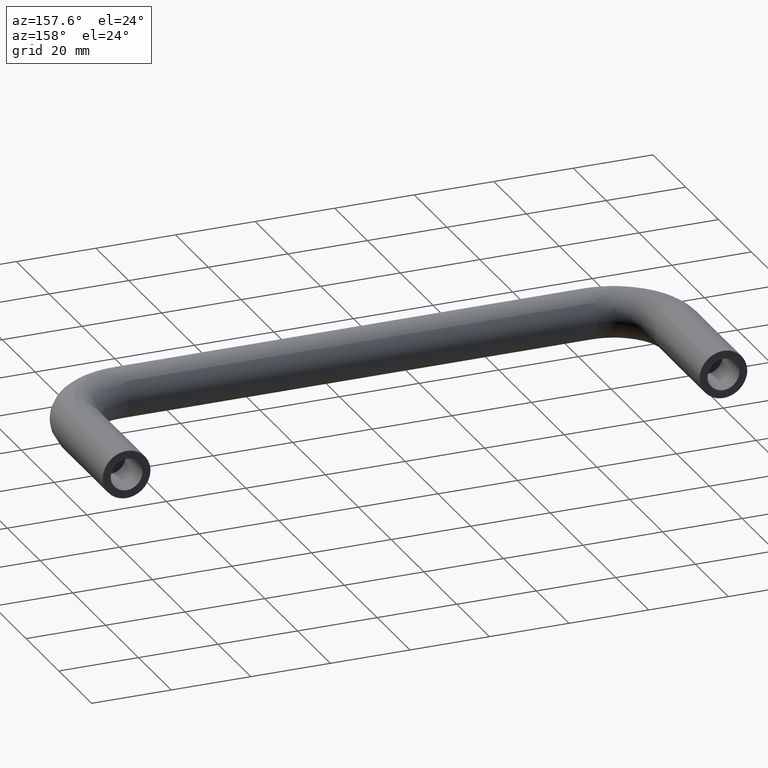
[diagram: clean part render]
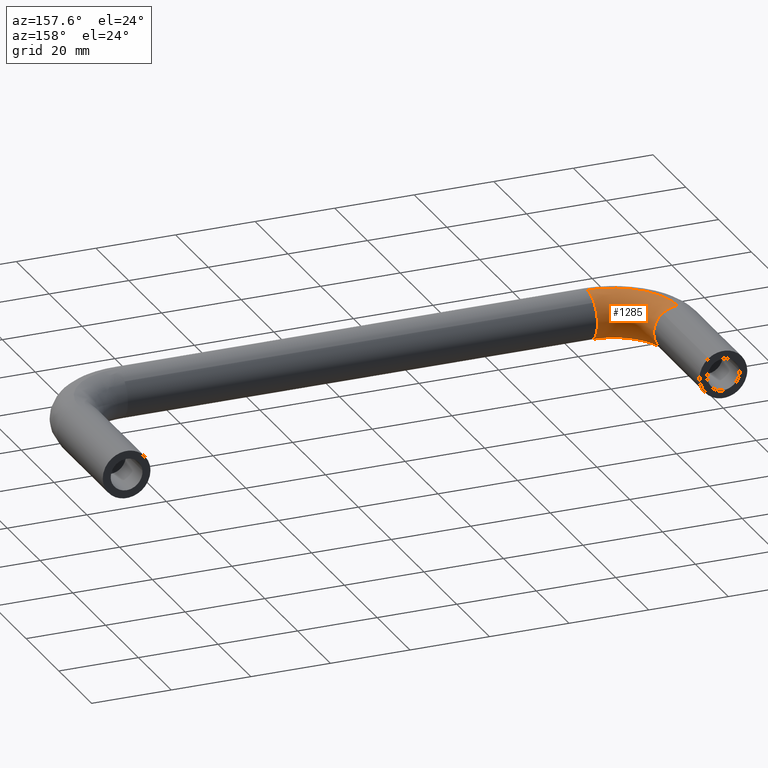
[diagram: same view with one face highlighted and labeled with its STEP entity id]
A machine part, auxiliary view. The second image highlights one B-rep face of the part: STEP entity #1285.
In plain terms, the highlighted face is a freeform B-spline surface patch.
Its self-contained STEP definition (entity closure, byte-faithful):
#668=CARTESIAN_POINT('',(15.999999999141631,-43.581600489424112,-5.985394042964074));
#669=VERTEX_POINT('',#668);
#685=CARTESIAN_POINT('',(16.0,-38.0,0.0));
#686=VERTEX_POINT('',#685);
#687=CARTESIAN_POINT('',(16.0,-38.0,0.0));
#688=CARTESIAN_POINT('',(16.0,-38.0,-5.595221081494556));
#689=CARTESIAN_POINT('',(15.999999999141634,-43.581600489424105,-5.985394042964075));
#697=(BOUNDED_CURVE()B_SPLINE_CURVE(2,(#687,#688,#689),.UNSPECIFIED.,.F.,.U.)B_SPLINE_CURVE_WITH_KNOTS((3,3),(0.0,0.237833686470585),.UNSPECIFIED.)CURVE()GEOMETRIC_REPRESENTATION_ITEM()RATIONAL_B_SPLINE_CURVE((1.0,0.721360504109444,0.972879876250539))REPRESENTATION_ITEM(''));
#698=EDGE_CURVE('',#686,#669,#697,.T.);
#700=CARTESIAN_POINT('',(16.0,-40.024282794942479,4.493737053432543));
#701=VERTEX_POINT('',#700);
#702=CARTESIAN_POINT('',(16.000000000000004,-40.024282794942479,4.493737053432543));
#703=CARTESIAN_POINT('',(16.0,-38.0,2.702805398987211));
#704=CARTESIAN_POINT('',(16.0,-38.0,0.0));
#712=(BOUNDED_CURVE()B_SPLINE_CURVE(2,(#702,#703,#704),.UNSPECIFIED.,.F.,.U.)B_SPLINE_CURVE_WITH_KNOTS((3,3),(0.865779784402009,1.0),.UNSPECIFIED.)CURVE()GEOMETRIC_REPRESENTATION_ITEM()RATIONAL_B_SPLINE_CURVE((0.854350176140473,0.842751236094676,1.0))REPRESENTATION_ITEM(''));
#713=EDGE_CURVE('',#701,#686,#712,.T.);
#817=CARTESIAN_POINT('',(15.999999999350271,-44.075396242914579,5.999526265177472));
#818=VERTEX_POINT('',#817);
#819=CARTESIAN_POINT('',(15.999999999350266,-44.075396242914579,5.999526265177472));
#820=CARTESIAN_POINT('',(15.999999999999996,-44.037699611566239,6.000000000000001));
#821=CARTESIAN_POINT('',(16.0,-44.0,6.0));
#822=CARTESIAN_POINT('',(15.999999999999996,-41.726805702402700,5.999999999999999));
#823=CARTESIAN_POINT('',(16.000000000000004,-40.024282794942479,4.493737053432543));
#831=(BOUNDED_CURVE()B_SPLINE_CURVE(2,(#819,#820,#821,#822,#823),.UNSPECIFIED.,.F.,.U.)B_SPLINE_CURVE_WITH_KNOTS((3,2,3),(0.747784295709823,0.750000000000000,0.865779784402009),.UNSPECIFIED.)CURVE()GEOMETRIC_REPRESENTATION_ITEM()RATIONAL_B_SPLINE_CURVE((0.994854295156289,0.997404140954045,1.0,0.864355545091872,0.854350176140473))REPRESENTATION_ITEM(''));
#832=EDGE_CURVE('',#818,#701,#831,.T.);
#884=CARTESIAN_POINT('',(-0.075396244198473,-28.000000000965699,5.999526265161338));
#885=VERTEX_POINT('',#884);
#886=CARTESIAN_POINT('',(3.735087819826505,-28.0,4.695648941113859));
#887=VERTEX_POINT('',#886);
#888=CARTESIAN_POINT('',(-0.075396244198473,-28.000000000965699,5.999526265161338));
#889=CARTESIAN_POINT('',(-0.037699612850280,-28.000000000000007,6.0));
#890=CARTESIAN_POINT('',(3.428898E-015,-28.0,6.0));
#891=CARTESIAN_POINT('',(2.095293800530349,-27.999999999999993,6.0));
#892=CARTESIAN_POINT('',(3.735087819826505,-28.0,4.695648941113860));
#900=(BOUNDED_CURVE()B_SPLINE_CURVE(2,(#888,#889,#890,#891,#892),.UNSPECIFIED.,.F.,.U.)B_SPLINE_CURVE_WITH_KNOTS((3,2,3),(0.747784295634552,0.750000000000000,0.857863877391495),.UNSPECIFIED.)CURVE()GEOMETRIC_REPRESENTATION_ITEM()RATIONAL_B_SPLINE_CURVE((0.994854294983044,0.997404140865859,1.0,0.873629607028422,0.856305618644054))REPRESENTATION_ITEM(''));
#901=EDGE_CURVE('',#885,#887,#900,.T.);
#998=CARTESIAN_POINT('',(6.000000000000004,-28.0,0.0));
#999=VERTEX_POINT('',#998);
#1000=CARTESIAN_POINT('',(3.735087819826505,-27.999999999999996,4.695648941113859));
#1001=CARTESIAN_POINT('',(6.000000000000004,-27.999999999999989,2.894056444904187));
#1002=CARTESIAN_POINT('',(6.000000000000004,-28.0,0.0));
#1010=(BOUNDED_CURVE()B_SPLINE_CURVE(2,(#1000,#1001,#1002),.UNSPECIFIED.,.F.,.U.)B_SPLINE_CURVE_WITH_KNOTS((3,3),(0.857863877391496,1.0),.UNSPECIFIED.)CURVE()GEOMETRIC_REPRESENTATION_ITEM()RATIONAL_B_SPLINE_CURVE((0.856305618644054,0.833477174158127,1.0))REPRESENTATION_ITEM(''));
#1011=EDGE_CURVE('',#887,#999,#1010,.T.);
#1013=CARTESIAN_POINT('',(0.418399511784851,-28.000000001480579,-5.985394042879566));
#1014=VERTEX_POINT('',#1013);
#1015=CARTESIAN_POINT('',(6.000000000000004,-28.0,0.0));
#1016=CARTESIAN_POINT('',(6.000000000000004,-27.999999999999996,-5.595221079228746));
#1017=CARTESIAN_POINT('',(0.418399511784851,-28.000000001480586,-5.985394042879566));
#1025=(BOUNDED_CURVE()B_SPLINE_CURVE(2,(#1015,#1016,#1017),.UNSPECIFIED.,.F.,.U.)B_SPLINE_CURVE_WITH_KNOTS((3,3),(0.0,0.237833686401109),.UNSPECIFIED.)CURVE()GEOMETRIC_REPRESENTATION_ITEM()RATIONAL_B_SPLINE_CURVE((1.0,0.721360504190839,0.972879876103592))REPRESENTATION_ITEM(''));
#1026=EDGE_CURVE('',#999,#1014,#1025,.T.);
#1220=CARTESIAN_POINT('',(-0.075396244198473,-28.000000000965709,5.999526265161338));
#1221=CARTESIAN_POINT('',(-0.075396237368702,-44.075396238000657,5.999526265222896));
#1222=CARTESIAN_POINT('',(15.999999999350264,-44.075396242914572,5.999526265177472));
#1230=(BOUNDED_CURVE()B_SPLINE_CURVE(2,(#1220,#1221,#1222),.UNSPECIFIED.,.F.,.U.)B_SPLINE_CURVE_WITH_KNOTS((3,3),(-1.744561813189079,-0.255438186769527),.UNSPECIFIED.)CURVE()GEOMETRIC_REPRESENTATION_ITEM()RATIONAL_B_SPLINE_CURVE((0.894678509997890,0.632633241470108,0.894678510012458))REPRESENTATION_ITEM(''));
#1231=EDGE_CURVE('',#885,#818,#1230,.T.);
#1236=CARTESIAN_POINT('',(0.418399511784851,-28.000000001480586,-5.985394042879566));
#1237=CARTESIAN_POINT('',(0.418399512413818,-43.581600488830617,-5.985394043042593));
#1238=CARTESIAN_POINT('',(15.999999999141638,-43.581600489424105,-5.985394042964074));
#1246=(BOUNDED_CURVE()B_SPLINE_CURVE(2,(#1236,#1237,#1238),.UNSPECIFIED.,.F.,.U.)B_SPLINE_CURVE_WITH_KNOTS((3,3),(-1.744561813115481,-0.255438186800423),.UNSPECIFIED.)CURVE()GEOMETRIC_REPRESENTATION_ITEM()RATIONAL_B_SPLINE_CURVE((0.874553433344358,0.618402663330830,0.874553433373290))REPRESENTATION_ITEM(''));
#1247=EDGE_CURVE('',#1014,#669,#1246,.T.);
#1252=CARTESIAN_POINT('',(-0.036483567885711,-26.882163237571998,5.999526265222896));
#1253=CARTESIAN_POINT('',(-1.321836769248059,-45.321837244897431,5.999526265222896));
#1254=CARTESIAN_POINT('',(17.117837202782201,-44.036483537190442,5.999526265222895));
#1255=CARTESIAN_POINT('',(5.948520032344958,-27.299353017318939,6.074922504523007));
#1256=CARTESIAN_POINT('',(5.142875708876957,-38.857124589254489,6.074922504523005));
#1257=CARTESIAN_POINT('',(16.700647258689905,-38.051479948415611,6.074922504523006));
#1258=CARTESIAN_POINT('',(6.023733764847594,-27.304595854682560,0.075396239300112));
#1259=CARTESIAN_POINT('',(5.224117958257964,-38.775882337642635,0.075396239300112));
#1260=CARTESIAN_POINT('',(16.695404419260946,-37.976266216056942,0.075396239300112));
#1261=CARTESIAN_POINT('',(6.094762111864237,-27.309546946181744,-5.590277027038187));
#1262=CARTESIAN_POINT('',(5.300839355926196,-38.699160937867653,-5.590277027038189));
#1263=CARTESIAN_POINT('',(16.690453325811365,-37.905237869176247,-5.590277027038187));
#1264=CARTESIAN_POINT('',(0.456116881452277,-26.916500371964812,-5.985394043042593));
#1265=CARTESIAN_POINT('',(-0.789753501755532,-44.789753962794158,-5.985394043042592));
#1266=CARTESIAN_POINT('',(17.083500054862824,-43.543883088795340,-5.985394043042594));
#1274=(BOUNDED_SURFACE()B_SPLINE_SURFACE(2,2,((#1252,#1255,#1258,#1261,#1264),(#1253,#1256,#1259,#1262,#1265),(#1254,#1257,#1260,#1263,#1266)),.UNSPECIFIED.,.F.,.F.,.U.)B_SPLINE_SURFACE_WITH_KNOTS((3,3),(3,2,3),(0.0,29.295383694434790),(0.0,9.941125496954280,19.484605974030391),.UNSPECIFIED.)GEOMETRIC_REPRESENTATION_ITEM()RATIONAL_B_SPLINE_SURFACE(((0.922164430830710,0.652068722409428,0.922164430830710,0.662872550746279,0.901421080423955),(0.605147314876259,0.427903769965834,0.605147314876259,0.434993511762250,0.591535010627138),(0.922164442367337,0.652068730567055,0.922164442367337,0.662872559039067,0.901421091701076)))REPRESENTATION_ITEM('')SURFACE());
#1275=ORIENTED_EDGE('',*,*,#698,.T.);
#1276=ORIENTED_EDGE('',*,*,#1247,.F.);
#1277=ORIENTED_EDGE('',*,*,#1026,.F.);
#1278=ORIENTED_EDGE('',*,*,#1011,.F.);
#1279=ORIENTED_EDGE('',*,*,#901,.F.);
#1280=ORIENTED_EDGE('',*,*,#1231,.T.);
#1281=ORIENTED_EDGE('',*,*,#832,.T.);
#1282=ORIENTED_EDGE('',*,*,#713,.T.);
#1283=EDGE_LOOP('',(#1275,#1276,#1277,#1278,#1279,#1280,#1281,#1282));
#1284=FACE_OUTER_BOUND('',#1283,.T.);
#1285=ADVANCED_FACE('',(#1284),#1274,.T.);